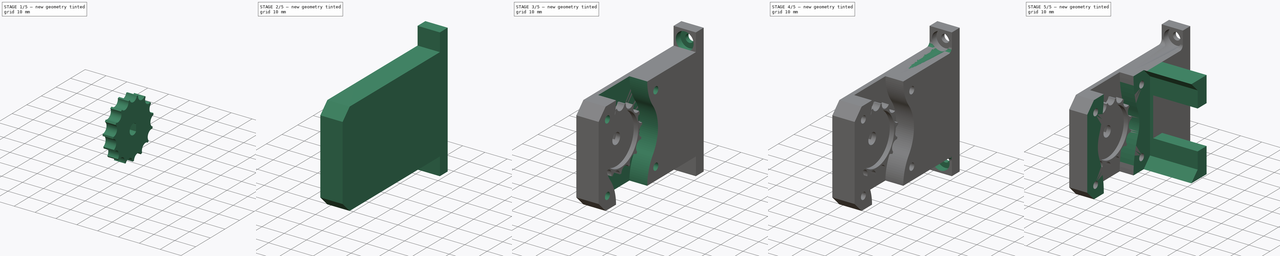
[diagram: build sequence overview — one tinted view per stage of 5, left to right]
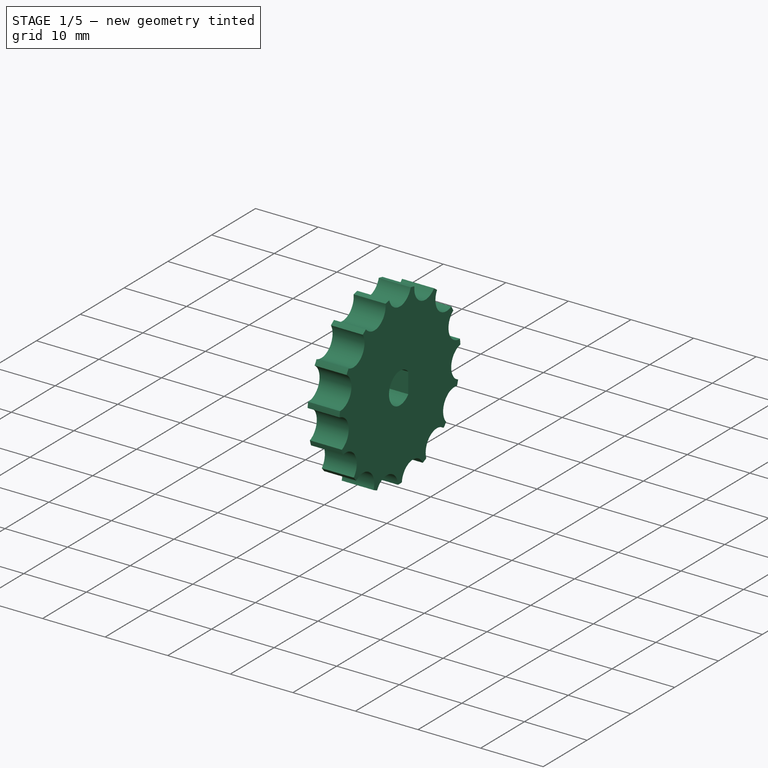
[diagram: stage 1 of 5 — iso view after this stage's code; geometry added in this stage tinted green]
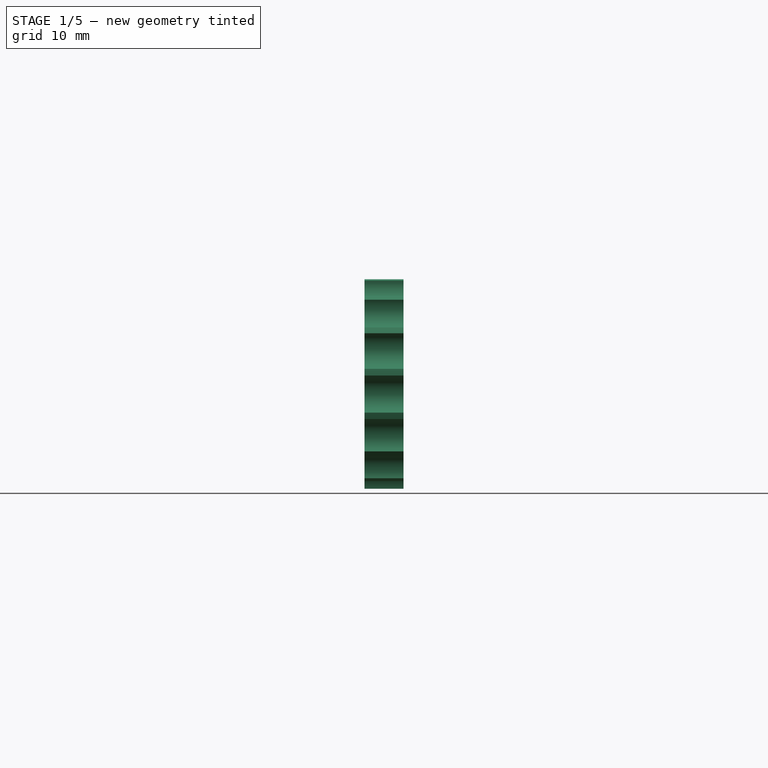
[diagram: stage 1 of 5 — front view after this stage's code; geometry added in this stage tinted green]
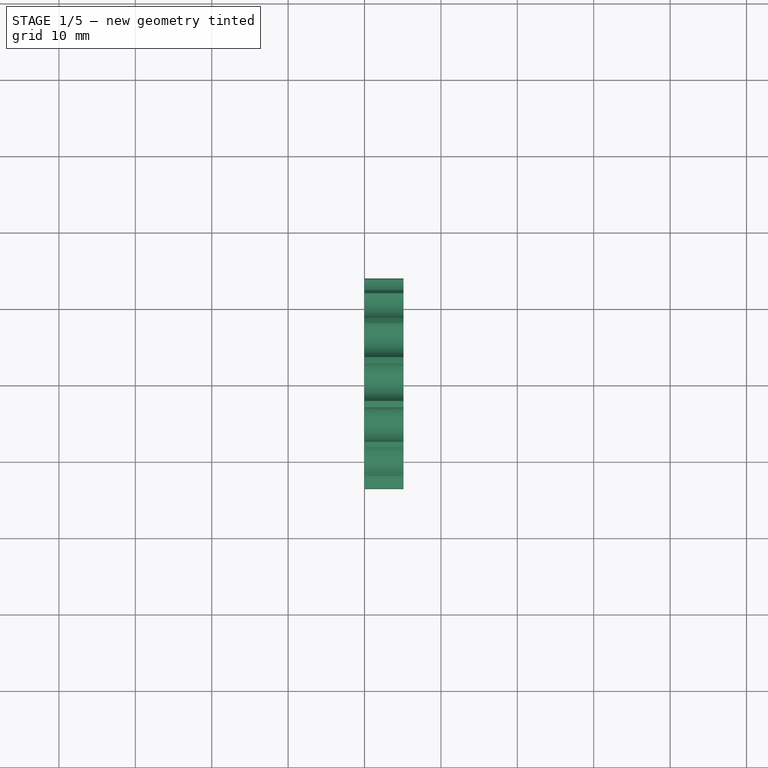
[diagram: stage 1 of 5 — top view after this stage's code; geometry added in this stage tinted green]
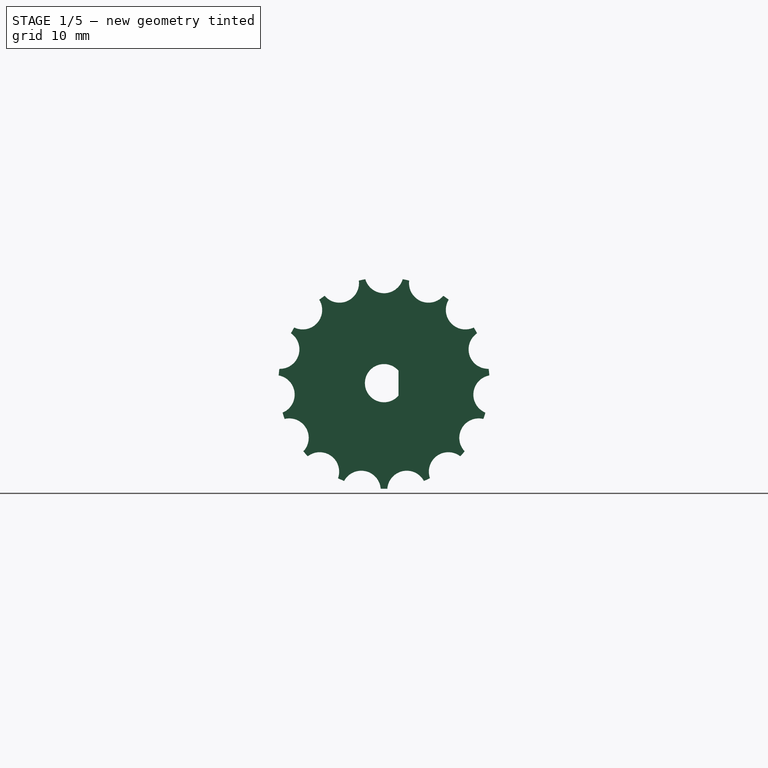
[diagram: stage 1 of 5 — right view after this stage's code; geometry added in this stage tinted green]
FCSTD DOCUMENT  (FreeCAD 0.19R24276 (Git))
Label: motor-stand-alone
License: All rights reserved
LicenseURL: http://en.wikipedia.org/wiki/All_rights_reserved
objects: Part::Feature×16, Sketcher::SketchObject×13, App::Link×11, App::Part×8, PartDesign::Pocket×7, PartDesign::Hole×4, PartDesign::Mirrored×4, PartDesign::Pad×2, PartDesign::Body×2, App::DocumentObjectGroup×2, Spreadsheet::Sheet×1, PartDesign::PolarPattern×1, PartDesign::Chamfer×1, PartDesign::Fillet×1, PartDesign::CoordinateSystem×1
note: 67 computed .brp shape members not serialized (recipe doc carries the construction recipe); baked Part::Feature solids carry a one-line shape summary decoded from their .brp

FEATURE [Spreadsheet::Sheet] Spreadsheet  label="Params"
  cells = A3=Chain Ball Radius; B3(ChainBallRadius)==4.1 / 2; A4=Chain Ball Distance; B4(ChainBallDistance)=6; A5=Chain String Radius; B5(ChainStringRadius)==1 / 2; A8=Shade Clearance; B8(ShadeClearance)=20; A9=Motor Pulley Teeths; B9(MotorPulleyTeeths)==ceil((22 + ChainBallRadius * 2) * pi / ChainBallDistance) + 1
FEATURE [Sketcher::SketchObject] Sketch
  FullyConstrained = true
  MapMode = 5
  Placement = pos=(0,0,0) rot=(0.57735,0.57735,0.57735;2.0944rad)
  Support = -> [YZ_Plane]
  expr: Constraints[13] = <<Params>>.MotorPulleyTeeths * <<Params>>.ChainBallDistance / pi - <<Params>>.ChainStringRadius * 2
  sketch-geometry (6):
    g0: LineSegment StartX=21.15 StartY=-21.15 StartZ=0 EndX=21.15 EndY=21.15 EndZ=0
    g1: LineSegment StartX=21.15 StartY=21.15 StartZ=0 EndX=-21.15 EndY=21.15 EndZ=0
    g2: LineSegment StartX=-21.15 StartY=21.15 StartZ=0 EndX=-21.15 EndY=-21.15 EndZ=0
    g3: LineSegment StartX=-21.15 StartY=-21.15 StartZ=0 EndX=21.15 EndY=-21.15 EndZ=0
    g4: Circle CenterX=0 CenterY=0 CenterZ=0 NormalX=0 NormalY=0 NormalZ=1 AngleXU=0 Radius=29.9106
    g5: Circle CenterX=0 CenterY=0 CenterZ=0 NormalX=0 NormalY=0 NormalZ=1 AngleXU=0 Radius=13.8239
  constraints (16):
    c: Coincident(g0,g1)
    c: Coincident(g1,g2)
    c: Coincident(g2,g3)
    c: Coincident(g3,g0)
    c: Equal(g0,g1)
    c: Equal(g0,g2)
    c: Equal(g0,g3)
    c: PointOnObject(g0,g4)
    c: PointOnObject(g1,g4)
    c: PointOnObject(g2,g4)
    c: PointOnObject(g3,g4)
    c: Angle(g3) = 0
    c: Distance(g0) = 42.3
    c: Diameter(g5) = 27.6479
    c: Coincident(g5,g-1)
    c: Coincident(g4,g5)
FEATURE [PartDesign::Pad] Pad
  Direction = (1,1,1)
  Length = 5.1
  Length2 = 100
  Placement = pos=(0,0,0) rot=(0.57735,0.57735,0.57735;2.0944rad)
  Profile = -> Sketch
  Type = 0
  expr: Length = <<Params>>.ChainBallRadius * 2 + 1
FEATURE [Sketcher::SketchObject] Sketch001
  FullyConstrained = true
  MapMode = 5
  Placement = pos=(5.1,-2.3e-15,1.1e-15) rot=(0.57735,0.57735,0.57735;2.0944rad)
  Support = -> [Pad]
  expr: Constraints[1] = <<Params>>.ChainBallRadius * 2 + 1
  expr: Constraints[2] = <<Params>>.MotorPulleyTeeths * <<Params>>.ChainBallDistance / pi / 2
  sketch-geometry (1):
    g0: Circle CenterX=0 CenterY=14.3239 CenterZ=0 NormalX=0 NormalY=0 NormalZ=1 AngleXU=0 Radius=2.55
  constraints (3):
    c: PointOnObject(g0,g-2)
    c: Diameter(g0) = 5.1
    c: Distance(g-1,g0) = 14.3239
FEATURE [PartDesign::Pocket] Pocket
  BaseFeature = -> Pad
  Length = 5
  Length2 = 100
  Placement = pos=(0,0,0) rot=(0.57735,0.57735,0.57735;2.0944rad)
  Profile = -> Sketch001
  Type = 1
FEATURE [PartDesign::PolarPattern] PolarPattern
  Angle = 360
  Axis = -> Sketch001 [N_Axis]
  BaseFeature = -> Pocket
  Occurrences = 15
  Originals = -> [Pocket]
  Placement = pos=(0,0,0) rot=(0.57735,0.57735,0.57735;2.0944rad)
  expr: Occurrences = <<Params>>.MotorPulleyTeeths
FEATURE [PartDesign::Pocket] Pocket001
  BaseFeature = -> PolarPattern
  Length = 5
  Length2 = 100
  Placement = pos=(0,0,0) rot=(0.57735,0.57735,0.57735;2.0944rad)
  Profile = -> Sketch002
  Type = 1
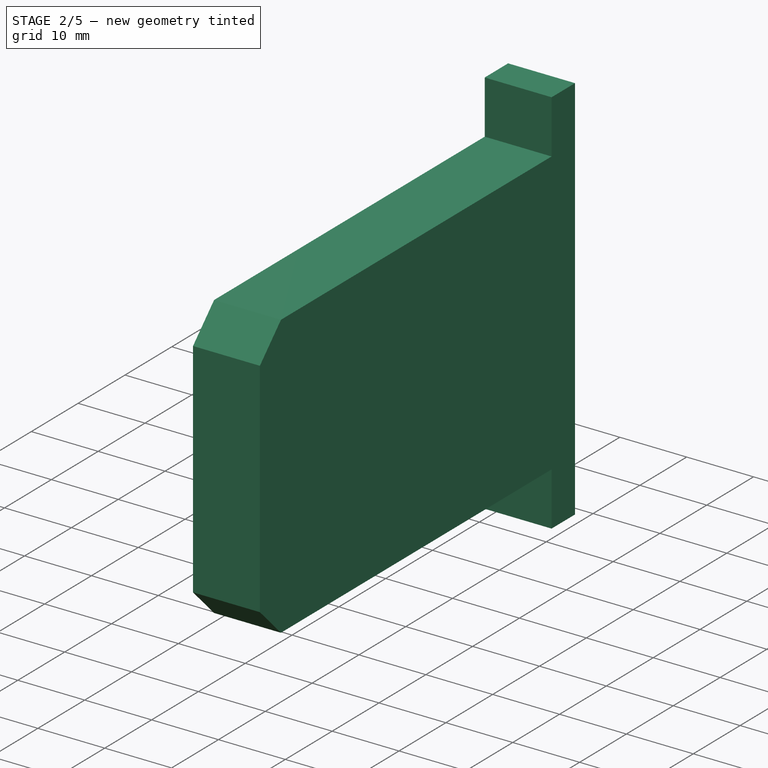
[diagram: stage 2 of 5 — iso view after this stage's code; geometry added in this stage tinted green]
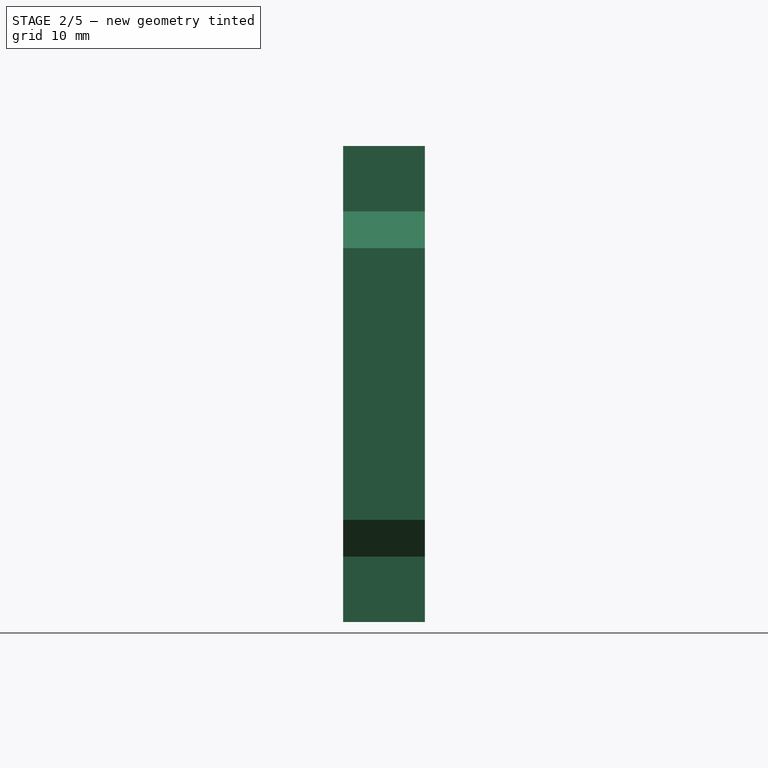
[diagram: stage 2 of 5 — front view after this stage's code; geometry added in this stage tinted green]
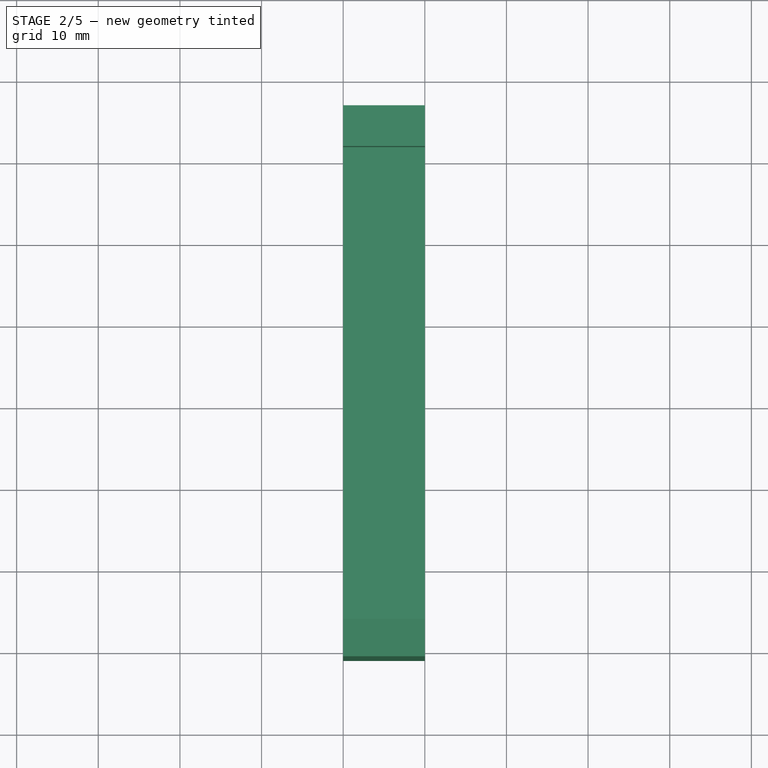
[diagram: stage 2 of 5 — top view after this stage's code; geometry added in this stage tinted green]
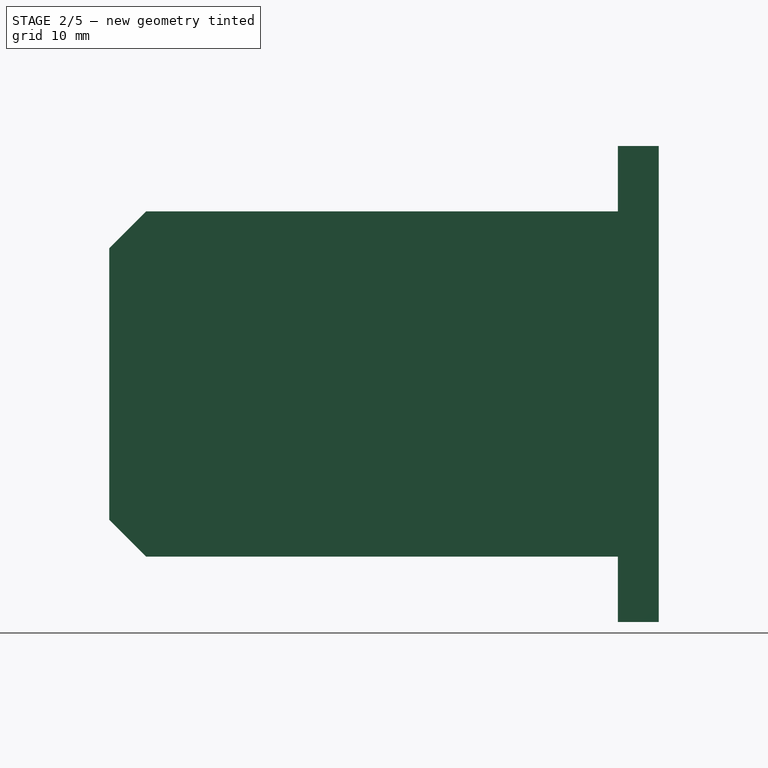
[diagram: stage 2 of 5 — right view after this stage's code; geometry added in this stage tinted green]
FEATURE [Sketcher::SketchObject] Sketch002
  FullyConstrained = true
  MapMode = 5
  Placement = pos=(5.1,-3.4e-15,1.7e-15) rot=(0.57735,0.57735,0.57735;2.0944rad)
  Support = -> [PolarPattern]
  sketch-geometry (3):
    g0: ArcOfCircle CenterX=0 CenterY=0 CenterZ=0 NormalX=0 NormalY=0 NormalZ=1 AngleXU=0 Radius=2.5 StartAngle=0.707483 EndAngle=5.5757
    g1: LineSegment StartX=1.9 StartY=1.62481 StartZ=0 EndX=1.9 EndY=-1.62481 EndZ=0
    g2: GeomPoint X=-2.5 Y=0 Z=0
  constraints (8):
    c: Coincident(g0,g-1)
    c: Coincident(g1,g0)
    c: Coincident(g1,g0)
    c: PointOnObject(g2,g0)
    c: PointOnObject(g2,g-1)
    c: Vertical(g1)
    c: Diameter(g0) = 5
    c: DistanceX(g2,g0) = 4.4
FEATURE [Sketcher::SketchObject] Sketch003
  FullyConstrained = true
  MapMode = 5
  Placement = pos=(0,0,0) rot=(0.57735,0.57735,0.57735;2.0944rad)
  Support = -> [YZ_Plane001]
  expr: Constraints[29] = <<Params>>.ShadeClearance
  sketch-geometry (12):
    g0: LineSegment StartX=21.15 StartY=-21.15 StartZ=0 EndX=21.15 EndY=21.15 EndZ=0
    g1: LineSegment StartX=21.15 StartY=21.15 StartZ=0 EndX=-21.15 EndY=21.15 EndZ=0
    g2: LineSegment StartX=-21.15 StartY=21.15 StartZ=0 EndX=-21.15 EndY=-21.15 EndZ=0
    g3: LineSegment StartX=-21.15 StartY=-21.15 StartZ=0 EndX=21.15 EndY=-21.15 EndZ=0
    g4: Circle CenterX=0 CenterY=0 CenterZ=0 NormalX=0 NormalY=0 NormalZ=1 AngleXU=0 Radius=29.9106
    g5: LineSegment StartX=21.15 StartY=21.15 StartZ=0 EndX=41.15 EndY=21.15 EndZ=0
    g6: LineSegment StartX=41.15 StartY=21.15 StartZ=0 EndX=41.15 EndY=29.15 EndZ=0
    g7: LineSegment StartX=41.15 StartY=29.15 StartZ=0 EndX=46.15 EndY=29.15 EndZ=0
    g8: LineSegment StartX=46.15 StartY=29.15 StartZ=0 EndX=46.15 EndY=-29.15 EndZ=0
    g9: LineSegment StartX=46.15 StartY=-29.15 StartZ=0 EndX=41.15 EndY=-29.15 EndZ=0
    g10: LineSegment StartX=21.15 StartY=-21.15 StartZ=0 EndX=41.15 EndY=-21.15 EndZ=0
    g11: LineSegment StartX=41.15 StartY=-21.15 StartZ=0 EndX=41.15 EndY=-29.15 EndZ=0
  constraints (34):
    c: Coincident(g0,g1)
    c: Coincident(g1,g2)
    c: Coincident(g2,g3)
    c: Coincident(g3,g0)
    c: Equal(g0,g1)
    c: Equal(g0,g2)
    c: Equal(g0,g3)
    c: PointOnObject(g0,g4)
    c: PointOnObject(g1,g4)
    c: PointOnObject(g2,g4)
    c: PointOnObject(g3,g4)
    c: Coincident(g4,g-1)
    c: Angle(g3) = 0
    c: Distance(g1) = 42.3
    c: Coincident(g5,g1)
    c: Horizontal(g5)
    c: Coincident(g6,g5)
    c: Vertical(g6)
    c: Coincident(g7,g6)
    c: Horizontal(g7)
    c: Coincident(g8,g7)
    c: Vertical(g8)
    c: Coincident(g9,g8)
    c: Coincident(g10,g3)
    c: Horizontal(g10)
    c: Coincident(g11,g10)
    c: Coincident(g11,g9)
    c: Vertical(g11)
    c: Horizontal(g9)
    c: Distance(g5) = 20
    c: Distance(g7) = 5
    c: Equal(g7,g9)
    c: Equal(g11,g6)
    c: Distance(g6) = 8
FEATURE [PartDesign::Pad] Pad001
  Direction = (1,1,1)
  Length = 10
  Length2 = 100
  Placement = pos=(0,0,0) rot=(0.57735,0.57735,0.57735;2.0944rad)
  Profile = -> Sketch003
  Type = 0
FEATURE [PartDesign::Chamfer] Chamfer
  Angle = 45
  Base = -> Pad001 [Edge5,Edge2]
  BaseFeature = -> Pad001
  ChamferType = 0
  FlipDirection = false
  Placement = pos=(0,0,0) rot=(0.57735,0.57735,0.57735;2.0944rad)
  Size = 4.5
  Size2 = 1
  SupportTransform = false
FEATURE [PartDesign::Body] Body001
  Group = -> [Sketch003,Pad001,Chamfer,Sketch005,Hole,Sketch006,Pocket002,Sketch007,Pocket003,Sketch008,Hole001,Hole002,Mirrored,Fillet,Mirrored001,Sketch009,Pocket004,Mirrored002,Sketch018,Hole003,Mirrored003]
  Origin = -> Origin001
  Tip = -> Mirrored003
FEATURE [Sketcher::SketchObject] Sketch021
  FullyConstrained = true
  MapMode = 5
  Placement = pos=(5.1,-4.5e-15,2.3e-15) rot=(0.57735,0.57735,0.57735;2.0944rad)
  Support = -> [Pocket001]
  sketch-geometry (1):
    g0: Circle CenterX=0 CenterY=0 CenterZ=0 NormalX=0 NormalY=0 NormalZ=1 AngleXU=0 Radius=11.2
  constraints (2):
    c: Coincident(g0,g-1)
    c: Diameter(g0) = 22.4
FEATURE [PartDesign::Pocket] Pocket008
  BaseFeature = -> Pocket001
  Length = 2
  Length2 = 100
  Placement = pos=(0,0,0) rot=(0.57735,0.57735,0.57735;2.0944rad)
  Profile = -> Sketch021
  Type = 0
FEATURE [Sketcher::SketchObject] Sketch022
  ExternalGeometry = -> [Pocket008]
  FullyConstrained = true
  MapMode = 5
  Placement = pos=(3.1,-2.7e-15,1.7e-15) rot=(0.57735,0.57735,0.57735;2.0944rad)
  Support = -> [Pocket008]
  sketch-geometry (1):
    g0: Circle CenterX=0 CenterY=0 CenterZ=0 NormalX=0 NormalY=0 NormalZ=1 AngleXU=0 Radius=2.5
  constraints (2):
    c: Coincident(g0,g-1)
    c: Equal(g0,g-3)
FEATURE [PartDesign::Pocket] Pocket009
  BaseFeature = -> Pocket008
  Length = 2
  Length2 = 100
  Placement = pos=(0,0,0) rot=(0.57735,0.57735,0.57735;2.0944rad)
  Profile = -> Sketch022
  Type = 0
FEATURE [PartDesign::Body] Body  label="Body002"
  Group = -> [Sketch,Pad,Sketch001,Pocket,PolarPattern,Sketch002,Pocket001,Sketch021,Pocket008,Sketch022,Pocket009]
  Origin = -> Origin
  Placement = pos=(2.2,0,0) rot=(0,0,1;0rad)
  Tip = -> Pocket009
FEATURE [Part::Feature] Part__Feature  label="Body"
  Placement = pos=(-4.25,24.1277,-12.5) rot=(0,1,0;1.5708rad)
  shape: bbox 48 x 42 x 62 mm, 423 faces, 20 solids (baked)
FEATURE [App::Part] Part  label="NEMA17"
  Group = -> [Part__Feature]
  Origin = -> Origin015
  Placement = pos=(7.5,0,2e-15) rot=(0.57735,0.57735,-0.57735;4.18879rad)
FEATURE [App::Part] Part001  label="motor-mount"
  Group = -> [Body001]
  Origin = -> Origin028
FEATURE [App::Part] Part002  label="motor-pulley"
  Group = -> [Body]
  Origin = -> Origin029
FEATURE [App::DocumentObjectGroup] Group001  label="3d-prints"
  Group = -> [Part001,Part002]
FEATURE [PartDesign::CoordinateSystem] Local_CS_5eb1
  AttacherType = Attacher::AttachEngine3D
FEATURE [Part::Feature] Pcb_5eb1
  Placement = pos=(-60.825,52.325,0) rot=(0,0,1;0rad)
  shape: bbox 50.1 x 49.8 x 1.6 mm, 96 faces (baked)
FEATURE [Sketcher::SketchObject] PCB_Sketch_5eb1
  FullyConstrained = false
  sketch-geometry (10):
    g0: LineSegment StartX=26 StartY=-22.9 StartZ=0 EndX=26 EndY=-16.9 EndZ=0
    g1: LineSegment StartX=-24.1 StartY=-15.6 StartZ=0 EndX=-16.8 EndY=-22.9 EndZ=0
    g2: LineSegment StartX=-16.8 StartY=-22.9 StartZ=0 EndX=26 EndY=-22.9 EndZ=0
    g3: LineSegment StartX=-24.1 StartY=26.9 StartZ=0 EndX=-24.1 EndY=-15.6 EndZ=0
    g4: LineSegment StartX=23.7 StartY=26.9 StartZ=0 EndX=-24.1 EndY=26.9 EndZ=0
    g5: LineSegment StartX=26 StartY=-16.9 StartZ=0 EndX=23.7 EndY=26.9 EndZ=0
    g6: Circle CenterX=15.5 CenterY=-15.5 CenterZ=0 NormalX=0 NormalY=0 NormalZ=1 AngleXU=0 Radius=1.6
    g7: Circle CenterX=15.5 CenterY=15.5 CenterZ=0 NormalX=0 NormalY=0 NormalZ=1 AngleXU=0 Radius=1.6
    g8: Circle CenterX=-15.5 CenterY=15.5 CenterZ=0 NormalX=0 NormalY=0 NormalZ=1 AngleXU=0 Radius=1.6
    g9: Circle CenterX=-15.5 CenterY=-15.5 CenterZ=0 NormalX=0 NormalY=0 NormalZ=1 AngleXU=0 Radius=1.6
  constraints (6):
    c: Coincident(g1,g3)
    c: Coincident(g3,g4)
    c: Coincident(g1,g2)
    c: Coincident(g4,g5)
    c: Coincident(g0,g2)
    c: Coincident(g0,g5)
FEATURE [Part::Feature] Shape  label="U3_PinSocket_2x10_P254mm_Vertical_6088BD27"
  Placement = pos=(-11.4,6.7,0) rot=(0,0,1;1.5708rad)
  shape: bbox 25.4 x 5.08 x 10.1 mm, 630 faces (baked)
FEATURE [App::Link] U3_PinSocket_2x10_P254mm_Vertical_6088BD27_ln_  label="U3_PinSocket_2x10_P254mm_Vertical_6088BD27[2]"
  LinkPlacement = pos=(-11.4,-18.76,0) rot=(0,0,1;1.5708rad)
  LinkedObject = -> Shape
  Placement = pos=(-11.4,-18.76,0) rot=(0,0,1;1.5708rad)
FEATURE [Part::Feature] Shape001  label="U3_PinHeader_2x10_P254mm_Vertical_6088BD27[3]"
  Placement = pos=(-11.4,6.7,9.6) rot=(0.707107,-0.707107,0;3.14159rad)
  shape: bbox 25.4 x 5.08 x 11.54 mm, 424 faces (baked)
FEATURE [App::Link] U3_PinHeader_2x10_P254mm_Vertical_6088BD27_3__ln_  label="U3_PinHeader_2x10_P254mm_Vertical_6088BD27[4]"
  LinkPlacement = pos=(-11.4,-18.8,9.6) rot=(-0.707107,0.707107,0;3.14159rad)
  LinkedObject = -> Shape001
  Placement = pos=(-11.4,-18.8,9.6) rot=(-0.707107,0.707107,0;3.14159rad)
FEATURE [Part::Feature] Shape002  label="U1_PinSocket_2x02_P254mm_Vertical_608AC9E9"
  Placement = pos=(-19.75,13.29,0) rot=(0,0,1;0rad)
  shape: bbox 5.08 x 5.08 x 10.1 mm, 134 faces (baked)
FEATURE [App::Link] U1_PinSocket_2x02_P254mm_Vertical_608AC9E9_ln_  label="U1_PinSocket_2x02_P254mm_Vertical_608AC9E9[2]"
  LinkPlacement = pos=(-19.75,21.71,0) rot=(0,0,-1;1.5708rad)
  LinkedObject = -> Shape002
  Placement = pos=(-19.75,21.71,0) rot=(0,0,-1;1.5708rad)
FEATURE [App::Link] U1_PinSocket_2x02_P254mm_Vertical_608AC9E9_ln_001  label="U1_PinSocket_2x02_P254mm_Vertical_608AC9E9[3]"
  LinkPlacement = pos=(-2.25,13.29,0) rot=(0,0,1;1.5708rad)
  LinkedObject = -> Shape002
  Placement = pos=(-2.25,13.29,0) rot=(0,0,1;1.5708rad)
FEATURE [App::Link] U1_PinSocket_2x02_P254mm_Vertical_608AC9E9_ln_002  label="U1_PinSocket_2x02_P254mm_Vertical_608AC9E9[4]"
  LinkPlacement = pos=(-2.5,21.71,0) rot=(0,0,1;3.14159rad)
  LinkedObject = -> Shape002
  Placement = pos=(-2.5,21.71,0) rot=(0,0,1;3.14159rad)
FEATURE [Part::Feature] Shape003  label="U1_PinHeader_2x02_P254mm_Vertical_608AC9E9[5]"
  Placement = pos=(-19.75,13.29,9.6) rot=(0,1,0;3.14159rad)
  shape: bbox 5.08 x 5.08 x 11.54 mm, 88 faces (baked)
FEATURE [App::Link] U1_PinHeader_2x02_P254mm_Vertical_608AC9E9_5__ln_  label="U1_PinHeader_2x02_P254mm_Vertical_608AC9E9[6]"
  LinkPlacement = pos=(-2.25,13.29,9.6) rot=(-0.707107,0.707107,0;3.14159rad)
  LinkedObject = -> Shape003
  Placement = pos=(-2.25,13.29,9.6) rot=(-0.707107,0.707107,0;3.14159rad)
FEATURE [App::Link] U1_PinHeader_2x02_P254mm_Vertical_608AC9E9_5__ln_001  label="U1_PinHeader_2x02_P254mm_Vertical_608AC9E9[7]"
  LinkPlacement = pos=(-2.25,21.71,9.6) rot=(1,0,0;3.14159rad)
  LinkedObject = -> Shape003
  Placement = pos=(-2.25,21.71,9.6) rot=(1,0,0;3.14159rad)
FEATURE [App::Link] U1_PinHeader_2x02_P254mm_Vertical_608AC9E9_5__ln_002  label="U1_PinHeader_2x02_P254mm_Vertical_608AC9E9[8]"
  LinkPlacement = pos=(-19.5,21.71,9.6) rot=(0.707107,0.707107,0;3.14159rad)
  LinkedObject = -> Shape003
  Placement = pos=(-19.5,21.71,9.6) rot=(0.707107,0.707107,0;3.14159rad)
FEATURE [Part::Feature] Shape004  label="A1_stepstick002_608A0AAC"
  Placement = pos=(73.4,75.1,9.3) rot=(0,0,1;3.14159rad)
  shape: bbox 20.32 x 15.24 x 16.04 mm, 1272 faces, 94 solids (baked)
FEATURE [Part::Feature] Shape005  label="A1_PinSocket_1x08_P254mm_Vertical_608A0AAC[2]"
  Placement = pos=(21.4,23.1,0) rot=(0,0,-1;1.5708rad)
  shape: bbox 20.32 x 2.54 x 10.1 mm, 258 faces (baked)
FEATURE [App::Link] A1_PinSocket_1x08_P254mm_Vertical_608A0AAC_2__ln_  label="A1_PinSocket_1x08_P254mm_Vertical_608A0AAC[3]"
  LinkPlacement = pos=(21.4,10.4,0) rot=(0,0,-1;1.5708rad)
  LinkedObject = -> Shape005
  Placement = pos=(21.4,10.4,0) rot=(0,0,-1;1.5708rad)
FEATURE [Part::Feature] Shape006  label="A1_PinSocket_1x02_P254mm_Vertical_608A0AAC[4]"
  Placement = pos=(3.62,12.9,0) rot=(0,0,1;3.14159rad)
  shape: bbox 2.54 x 5.08 x 10.1 mm, 72 faces (baked)
FEATURE [Part::Feature] Shape007  label="J2_PinHeader_1x03_P254mm_Vertical_60893AEE"
  Placement = pos=(-21.75,-8.38,0) rot=(0,0,1;3.14159rad)
  shape: bbox 2.54 x 7.62 x 11.54 mm, 76 faces (baked)
FEATURE [Part::Feature] Shape008  label="C8_CP_Radial_D50mm_P250mm_60821875"
  Placement = pos=(6.9,18.2,0) rot=(0,0,1;0rad)
  shape: bbox 6.128 x 6.515 x 7 mm, 49 faces (baked)
FEATURE [Part::Feature] Shape009  label="R3_R_0805_2012Metric_6088BC68"
  Placement = pos=(0.1,1.2,0) rot=(0,0,1;3.14159rad)
  shape: bbox 2 x 1.2 x 0.45 mm, 26 faces (baked)
FEATURE [App::Link] R3_R_0805_2012Metric_6088BC68_ln_  label="R2_R_0805_2012Metric_6088BC51"
  LinkPlacement = pos=(-6.3,-2.3,0) rot=(0,0,1;1.5708rad)
  LinkedObject = -> Shape009
  Placement = pos=(-6.3,-2.3,0) rot=(0,0,1;1.5708rad)
FEATURE [App::Link] R3_R_0805_2012Metric_6088BC68_ln_001  label="R1_R_0805_2012Metric_6088FFA8"
  LinkPlacement = pos=(-3.7,-2.3,0) rot=(0,0,1;1.5708rad)
  LinkedObject = -> Shape009
  Placement = pos=(-3.7,-2.3,0) rot=(0,0,1;1.5708rad)
FEATURE [Part::Feature] Shape010  label="U4_TO-92_Inline_Narrow_6088BD39"
  Placement = pos=(23.7,-21.1,0) rot=(0,0,1;1.5708rad)
  shape: bbox 3.745 x 4.83 x 9.8 mm, 19 faces (baked)
FEATURE [App::Part] Top_5eb1
  Group = -> [Shape,U3_PinSocket_2x10_P254mm_Vertical_6088BD27_ln_,Shape001,U3_PinHeader_2x10_P254mm_Vertical_6088BD27_3__ln_,Shape002,U1_PinSocket_2x02_P254mm_Vertical_608AC9E9_ln_,U1_PinSocket_2x02_P254mm_Vertical_608AC9E9_ln_001,U1_PinSocket_2x02_P254mm_Vertical_608AC9E9_ln_002,Shape003,U1_PinHeader_2x02_P254mm_Vertical_608AC9E9_5__ln_,U1_PinHeader_2x02_P254mm_Vertical_608AC9E9_5__ln_001,+11 more]
  Origin = -> Origin003
FEATURE [Part::Feature] Shape011  label="C2_C_0805_2012Metric_60597E53"
  Placement = pos=(5.2,-0.4,-1.6) rot=(0.707107,-0.707107,0;3.14159rad)
  shape: bbox 1.25 x 2 x 1.25 mm, 28 faces (baked)
FEATURE [App::Part] Bot_5eb1
  Group = -> [Shape011]
  Origin = -> Origin004
FEATURE [App::Part] Step_Models_5eb1
  Group = -> [Top_5eb1,Bot_5eb1]
  Origin = -> Origin002
FEATURE [Part::Feature] topTracks_5eb1
  Placement = pos=(-60.825,52.325,0.01) rot=(0,0,1;0rad)
  shape: bbox 47.74 x 47.3 x 0.04 mm, 107 faces, 0 solids (baked)
FEATURE [Part::Feature] botTracks_5eb1
  Placement = pos=(-60.825,52.325,-1.61) rot=(0,0,1;0rad)
  shape: bbox 47.74 x 47.22 x 0.04 mm, 109 faces, 0 solids (baked)
FEATURE [App::Part] Board_Geoms_5eb1
  Group = -> [Local_CS_5eb1,Pcb_5eb1,PCB_Sketch_5eb1,topTracks_5eb1,botTracks_5eb1]
  Origin = -> Origin033
FEATURE [App::Part] Board_5eb1  label="driver-board"
  Group = -> [Board_Geoms_5eb1,Step_Models_5eb1]
  Origin = -> Origin032
  Placement = pos=(50,0,1.11e-14) rot=(0,1,0;1.5708rad)
FEATURE [App::DocumentObjectGroup] Group  label="pcbs"
  Group = -> [Board_5eb1]
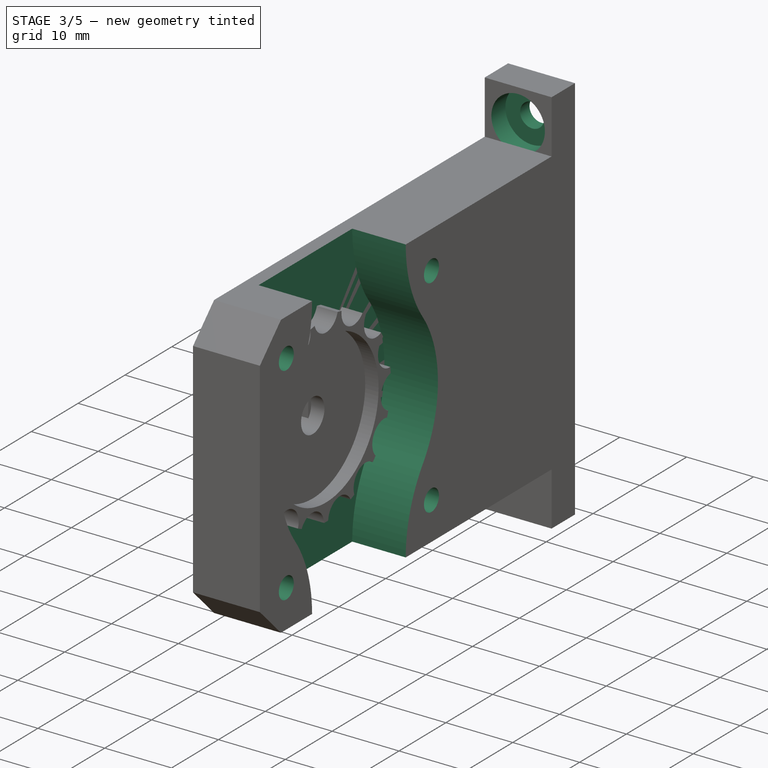
[diagram: stage 3 of 5 — iso view after this stage's code; geometry added in this stage tinted green]
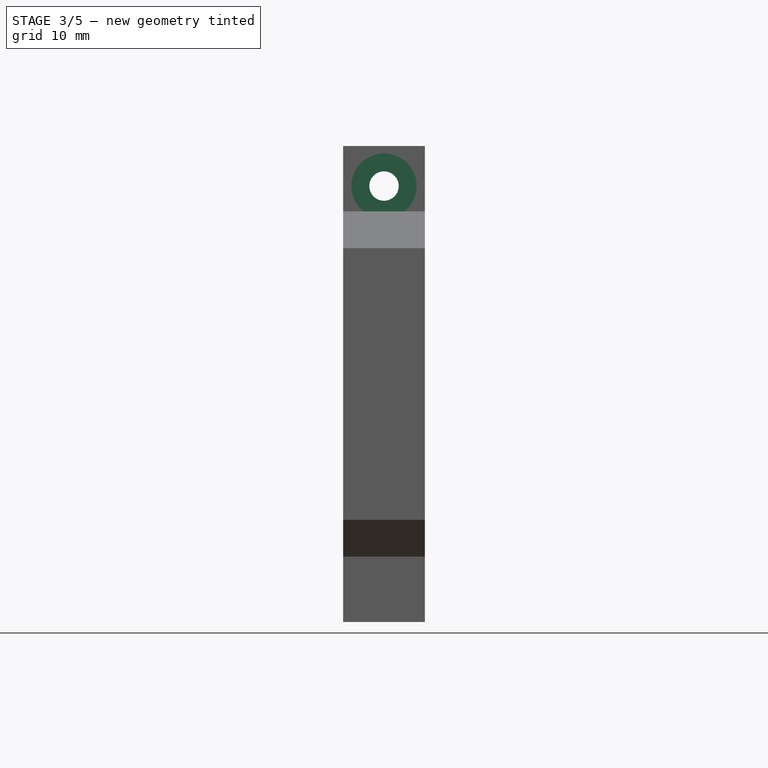
[diagram: stage 3 of 5 — front view after this stage's code; geometry added in this stage tinted green]
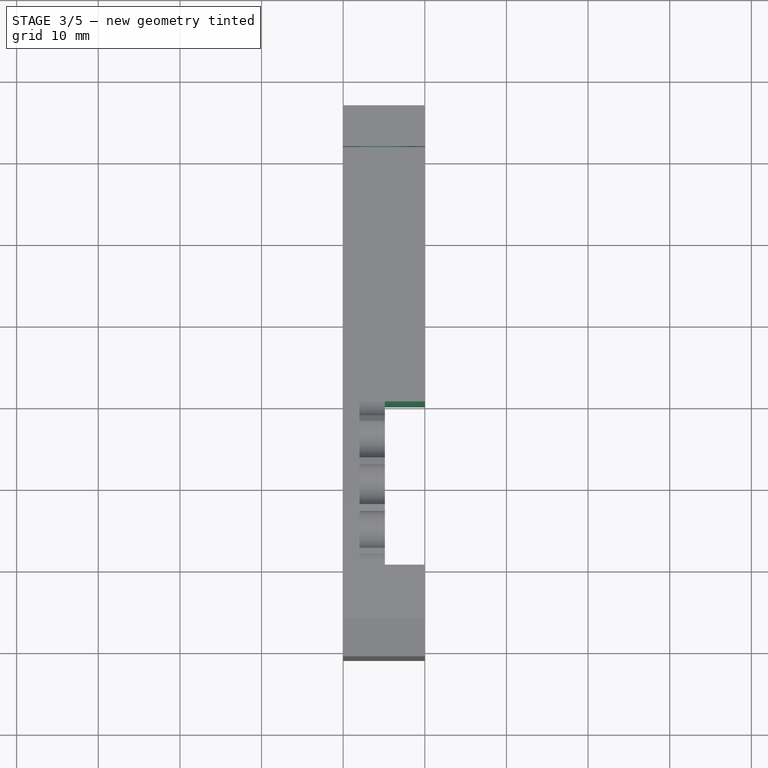
[diagram: stage 3 of 5 — top view after this stage's code; geometry added in this stage tinted green]
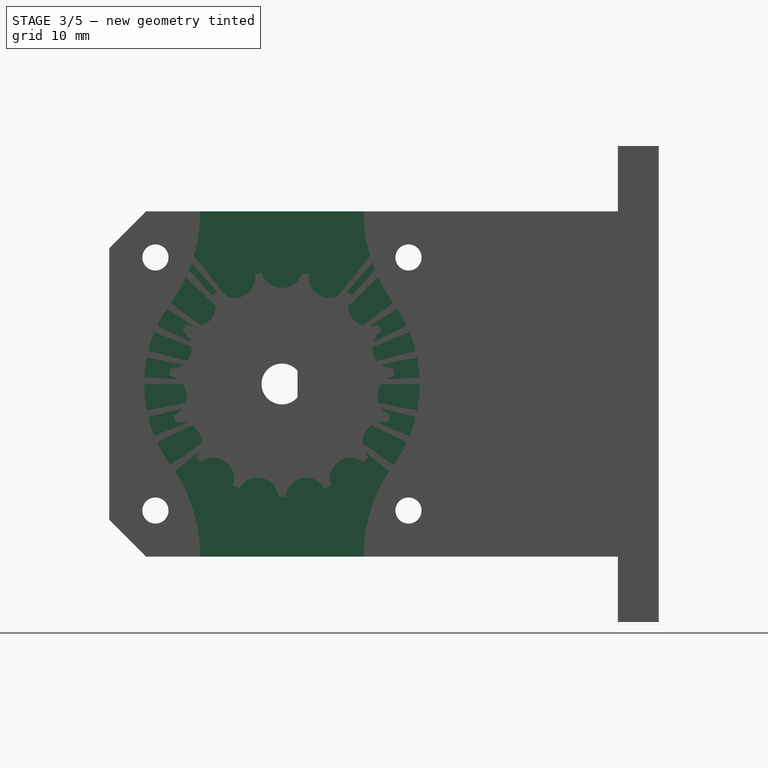
[diagram: stage 3 of 5 — right view after this stage's code; geometry added in this stage tinted green]
FEATURE [Sketcher::SketchObject] Sketch005
  ExternalGeometry = -> [Chamfer]
  FullyConstrained = true
  MapMode = 5
  Placement = pos=(0,0,0) rot=(0.57735,0.57735,-0.57735;4.18879rad)
  Support = -> [Chamfer]
  sketch-geometry (9):
    g0: LineSegment StartX=-15.5 StartY=15.5 StartZ=0 EndX=-15.5 EndY=-15.5 EndZ=0
    g1: LineSegment StartX=-15.5 StartY=-15.5 StartZ=0 EndX=15.5 EndY=-15.5 EndZ=0
    g2: LineSegment StartX=15.5 StartY=-15.5 StartZ=0 EndX=15.5 EndY=15.5 EndZ=0
    g3: LineSegment StartX=15.5 StartY=15.5 StartZ=0 EndX=-15.5 EndY=15.5 EndZ=0
    g4: Circle CenterX=0 CenterY=0 CenterZ=0 NormalX=0 NormalY=0 NormalZ=1 AngleXU=0 Radius=21.9203
    g5: Circle CenterX=-15.5 CenterY=-15.5 CenterZ=0 NormalX=0 NormalY=0 NormalZ=1 AngleXU=0 Radius=3.5
    g6: Circle CenterX=15.5 CenterY=-15.5 CenterZ=0 NormalX=0 NormalY=0 NormalZ=1 AngleXU=0 Radius=3.5
    g7: Circle CenterX=15.5 CenterY=15.5 CenterZ=0 NormalX=0 NormalY=0 NormalZ=1 AngleXU=0 Radius=3.5
    g8: Circle CenterX=-15.5 CenterY=15.5 CenterZ=0 NormalX=0 NormalY=0 NormalZ=1 AngleXU=0 Radius=3.5
  constraints (22):
    c: Coincident(g0,g1)
    c: Coincident(g1,g2)
    c: Coincident(g2,g3)
    c: Coincident(g3,g0)
    c: Equal(g0,g1)
    c: Equal(g0,g2)
    c: Equal(g0,g3)
    c: PointOnObject(g0,g4)
    c: PointOnObject(g1,g4)
    c: PointOnObject(g2,g4)
    c: PointOnObject(g3,g4)
    c: Coincident(g4,g-1)
    c: Angle(g-3,g0) = 0
    c: Distance(g0) = 31
    c: Coincident(g5,g0)
    c: Coincident(g6,g1)
    c: Coincident(g7,g2)
    c: Coincident(g8,g0)
    c: Equal(g8,g7)
    c: Equal(g7,g6)
    c: Equal(g6,g5)
    c: Diameter(g5) = 7
FEATURE [PartDesign::Hole] Hole
  BaseFeature = -> Chamfer
  Depth = 24
  DepthType = 1
  Diameter = 3.2
  DrillForDepth = false
  DrillPoint = 1
  DrillPointAngle = 118
  HoleCutCountersinkAngle = 90
  HoleCutCustomValues = false
  HoleCutDepth = 0
  HoleCutDiameter = 7
  HoleCutType = 2
  ModelActualThread = false
  Placement = pos=(0,0,0) rot=(0.57735,0.57735,0.57735;2.0944rad)
  Profile = -> Sketch005
  Tapered = false
  TaperedAngle = 90
  ThreadAngle = 0
  ThreadClass = 0
  ThreadCutOffInner = 0
  ThreadCutOffOuter = 0
  ThreadDirection = 0
  ThreadFit = 0
  ThreadPitch = 0
  ThreadSize = 0
  ThreadType = 0
  Threaded = false
FEATURE [Sketcher::SketchObject] Sketch006
  ExternalGeometry = -> [Hole]
  FullyConstrained = true
  MapMode = 5
  Placement = pos=(10,-2.2e-15,2.2e-15) rot=(0.57735,0.57735,0.57735;2.0944rad)
  Support = -> [Hole]
  expr: Constraints[24] = <<Params>>.MotorPulleyTeeths * <<Params>>.ChainBallDistance / pi / 2 + <<Params>>.ChainBallRadius + 0.5
  sketch-geometry (9):
    g0: GeomPoint X=16.8739 Y=0 Z=0
    g1: ArcOfCircle CenterX=29.1006 CenterY=21.15 CenterZ=0 NormalX=0 NormalY=0 NormalZ=1 AngleXU=0 Radius=19.1006 StartAngle=3.14159 EndAngle=3.77007
    g2: ArcOfCircle CenterX=29.1006 CenterY=-21.15 CenterZ=0 NormalX=0 NormalY=0 NormalZ=1 AngleXU=0 Radius=19.1006 StartAngle=2.51311 EndAngle=3.14159
    g3: ArcOfCircle CenterX=-29.1006 CenterY=-21.15 CenterZ=0 NormalX=0 NormalY=0 NormalZ=1 AngleXU=0 Radius=19.1006 StartAngle=-9e-16 EndAngle=0.62848
    g4: ArcOfCircle CenterX=-29.1006 CenterY=21.15 CenterZ=0 NormalX=0 NormalY=0 NormalZ=1 AngleXU=0 Radius=19.1006 StartAngle=5.6547 EndAngle=6.28319
    g5: ArcOfCircle CenterX=0 CenterY=0 CenterZ=0 NormalX=0 NormalY=0 NormalZ=1 AngleXU=0 Radius=16.8739 StartAngle=2.51311 EndAngle=3.77007
    g6: ArcOfCircle CenterX=0 CenterY=0 CenterZ=0 NormalX=0 NormalY=0 NormalZ=1 AngleXU=0 Radius=16.8739 StartAngle=5.6547 EndAngle=6.91167
    g7: LineSegment StartX=-10 StartY=21.15 StartZ=0 EndX=10 EndY=21.15 EndZ=0
    g8: LineSegment StartX=-10 StartY=-21.15 StartZ=0 EndX=10 EndY=-21.15 EndZ=0
  constraints (26):
    c: PointOnObject(g0,g-1)
    c: PointOnObject(g1,g-7)
    c: PointOnObject(g2,g-9)
    c: PointOnObject(g3,g-9)
    c: PointOnObject(g4,g-7)
    c: Coincident(g5,g-1)
    c: Coincident(g6,g5)
    c: PointOnObject(g0,g6)
    c: Equal(g6,g5)
    c: Tangent(g1,g6) = 1.5708
    c: Tangent(g5,g4) = 1.5708
    c: Tangent(g5,g3) = 1.5708
    c: Tangent(g2,g6) = 1.5708
    c: Perpendicular(g4,g-7)
    c: Perpendicular(g1,g-7)
    c: Perpendicular(g2,g-9)
    c: Perpendicular(g3,g-9)
    c: Equal(g3,g4)
    c: Equal(g4,g1)
    c: Equal(g1,g2)
    c: Coincident(g7,g4)
    c: Coincident(g7,g1)
    c: Coincident(g8,g3)
    c: Coincident(g8,g2)
    c: Distance(g5,g0) = 16.8739
    c: Distance(g8) = 20
FEATURE [PartDesign::Pocket] Pocket002
  BaseFeature = -> Hole
  Length = 0
  Length2 = 100
  Offset = -2
  Placement = pos=(0,0,0) rot=(0.57735,0.57735,0.57735;2.0944rad)
  Profile = -> Sketch006
  Type = 3
  UpToFace = -> Hole [Face2]
FEATURE [Sketcher::SketchObject] Sketch007
  FullyConstrained = true
  MapMode = 5
  Placement = pos=(2,-4e-16,4e-16) rot=(0.57735,0.57735,0.57735;2.0944rad)
  Support = -> [Pocket002]
  sketch-geometry (1):
    g0: Circle CenterX=0 CenterY=0 CenterZ=0 NormalX=0 NormalY=0 NormalZ=1 AngleXU=0 Radius=3
  constraints (2):
    c: Coincident(g0,g-1)
    c: Radius(g0) = 3
FEATURE [PartDesign::Pocket] Pocket003
  BaseFeature = -> Pocket002
  Length = 5
  Length2 = 100
  Placement = pos=(0,0,0) rot=(0.57735,0.57735,0.57735;2.0944rad)
  Profile = -> Sketch007
  Type = 1
FEATURE [Sketcher::SketchObject] Sketch008
  ExternalGeometry = -> [Pocket003]
  FullyConstrained = true
  MapMode = 5
  Placement = pos=(1.81e-14,41.15,-9.1e-15) rot=(-0.57735,-0.57735,0.57735;4.18879rad)
  Support = -> [Pocket003]
  sketch-geometry (5):
    g0: Circle CenterX=-24.25 CenterY=5 CenterZ=0 NormalX=0 NormalY=0 NormalZ=1 AngleXU=0 Radius=4.1
    g1: LineSegment StartX=-29.15 StartY=-5.12e-14 StartZ=0 EndX=-24.25 EndY=5 EndZ=0
    g2: LineSegment StartX=-24.25 StartY=5 StartZ=0 EndX=-29.15 EndY=10 EndZ=0
    g3: GeomPoint X=-28.35 Y=5 Z=0
    g4: LineSegment StartX=-29.15 StartY=5 StartZ=0 EndX=-28.35 EndY=5 EndZ=0
  constraints (12):
    c: Coincident(g1,g-3)
    c: Coincident(g1,g0)
    c: Coincident(g2,g0)
    c: Coincident(g2,g-3)
    c: Equal(g2,g1)
    c: Diameter(g0) = 8.2
    c: PointOnObject(g3,g0)
    c: Horizontal(g3,g0)
    c: PointOnObject(g4,g-3)
    c: Coincident(g4,g3)
    c: Perpendicular(g-3,g4)
    c: Distance(g4) = 0.8
FEATURE [PartDesign::Hole] Hole001
  BaseFeature = -> Pocket003
  Depth = 25
  DepthType = 1
  Diameter = 3.6
  DrillForDepth = false
  DrillPoint = 1
  DrillPointAngle = 118
  HoleCutCountersinkAngle = 90
  HoleCutCustomValues = false
  HoleCutDepth = 3
  HoleCutDiameter = 8
  HoleCutType = 1
  ModelActualThread = false
  Placement = pos=(0,0,0) rot=(0.57735,0.57735,0.57735;2.0944rad)
  Profile = -> Sketch008
  Tapered = false
  TaperedAngle = 90
  ThreadAngle = 0
  ThreadClass = 0
  ThreadCutOffInner = 0
  ThreadCutOffOuter = 0
  ThreadDirection = 0
  ThreadFit = 0
  ThreadPitch = 0
  ThreadSize = 0
  ThreadType = 0
  Threaded = false
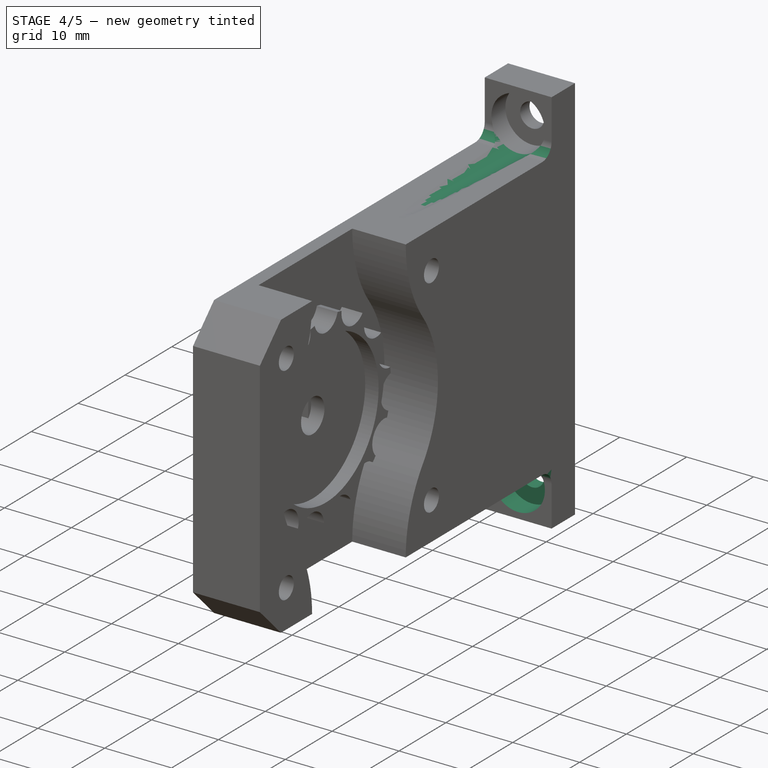
[diagram: stage 4 of 5 — iso view after this stage's code; geometry added in this stage tinted green]
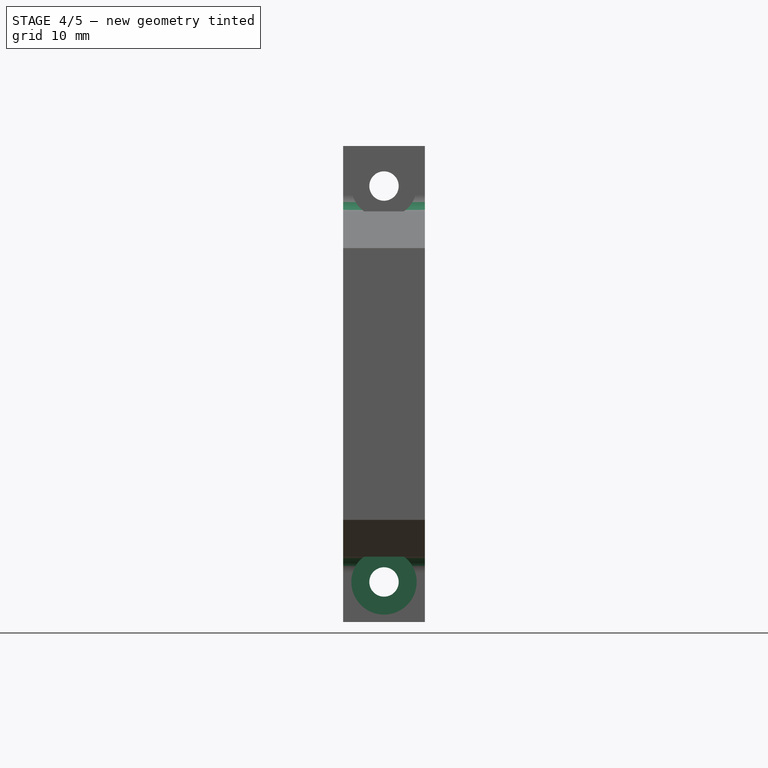
[diagram: stage 4 of 5 — front view after this stage's code; geometry added in this stage tinted green]
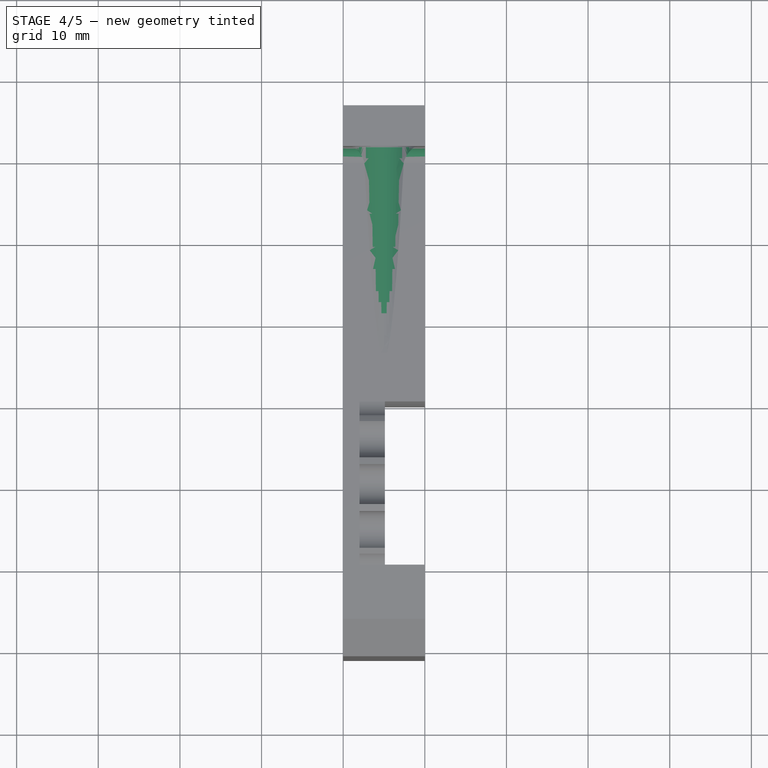
[diagram: stage 4 of 5 — top view after this stage's code; geometry added in this stage tinted green]
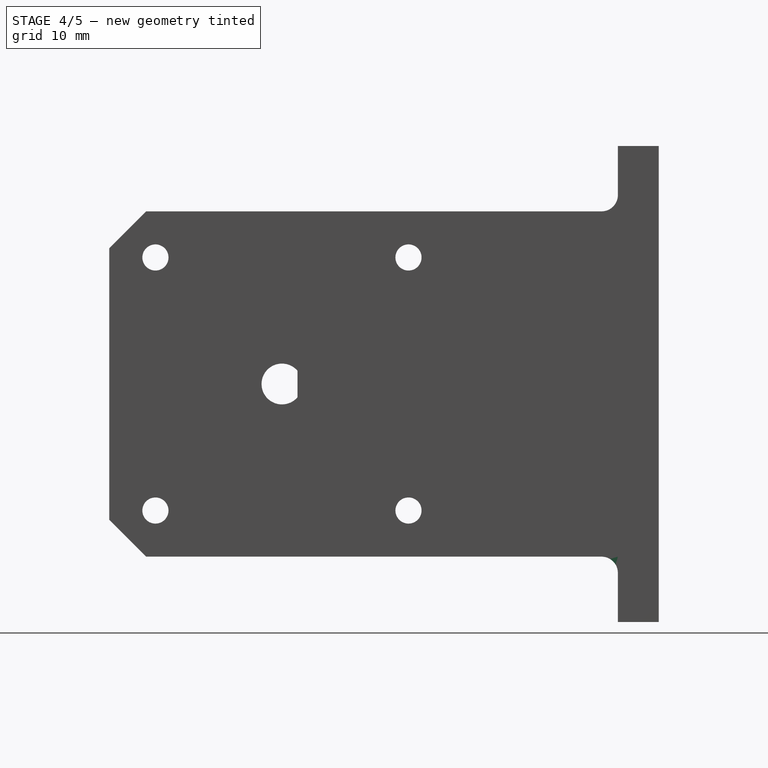
[diagram: stage 4 of 5 — right view after this stage's code; geometry added in this stage tinted green]
FEATURE [PartDesign::Hole] Hole002
  BaseFeature = -> Hole001
  Depth = 100
  DepthType = 0
  Diameter = 8
  DrillForDepth = false
  DrillPoint = 1
  DrillPointAngle = 118
  HoleCutCountersinkAngle = 90
  HoleCutCustomValues = false
  HoleCutDepth = 0
  HoleCutDiameter = 0
  HoleCutType = 0
  ModelActualThread = false
  Placement = pos=(0,0,0) rot=(0.57735,0.57735,0.57735;2.0944rad)
  Profile = -> Sketch008
  Reversed = true
  Tapered = true
  TaperedAngle = 88
  ThreadAngle = 0
  ThreadClass = 0
  ThreadCutOffInner = 0
  ThreadCutOffOuter = 0
  ThreadDirection = 0
  ThreadFit = 0
  ThreadPitch = 0
  ThreadSize = 0
  ThreadType = 0
  Threaded = false
FEATURE [PartDesign::Mirrored] Mirrored
  BaseFeature = -> Hole002
  MirrorPlane = -> Sketch008 [V_Axis]
  Originals = -> [Hole001,Hole002]
  Placement = pos=(0,0,0) rot=(0.57735,0.57735,0.57735;2.0944rad)
FEATURE [PartDesign::Fillet] Fillet
  Base = -> Mirrored [Edge46,Edge50]
  BaseFeature = -> Mirrored
  Placement = pos=(0,0,0) rot=(0.57735,0.57735,0.57735;2.0944rad)
  Radius = 2
  SupportTransform = false
FEATURE [PartDesign::Mirrored] Mirrored001
  BaseFeature = -> Fillet
  MirrorPlane = -> XY_Plane001
  Originals = -> [Fillet]
  Placement = pos=(0,0,0) rot=(0.57735,0.57735,0.57735;2.0944rad)
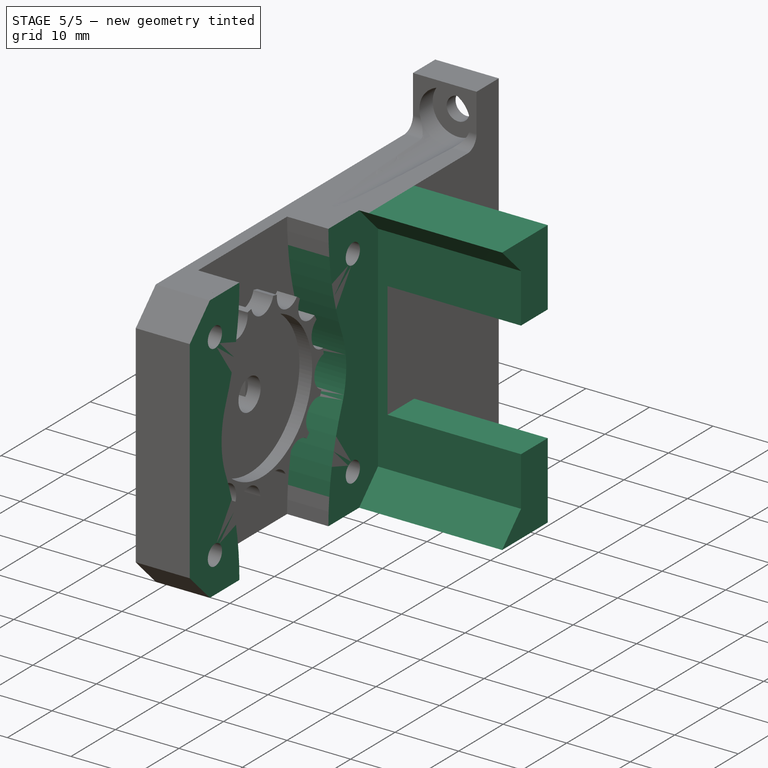
[diagram: stage 5 of 5 — iso view after this stage's code; geometry added in this stage tinted green]
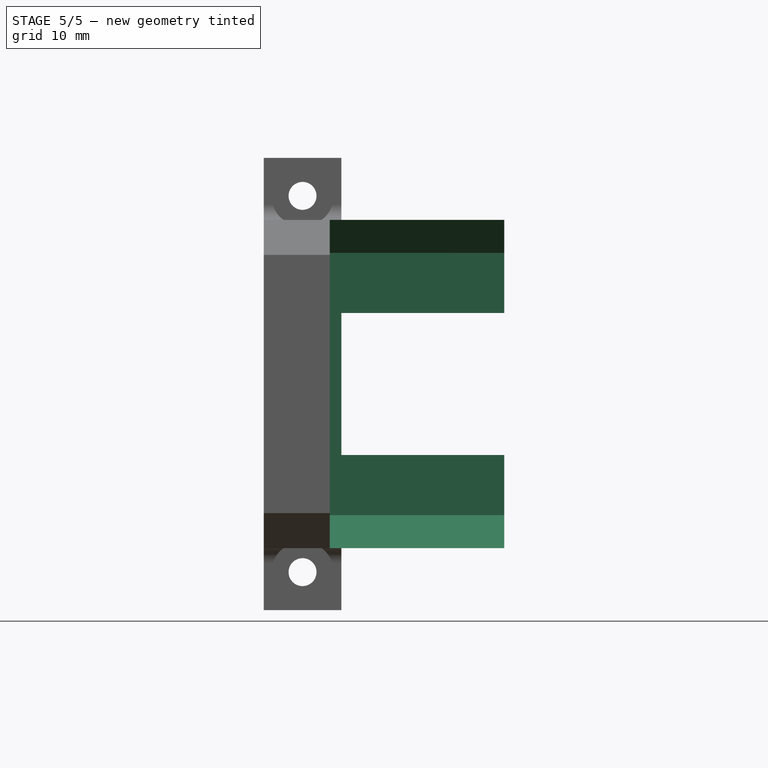
[diagram: stage 5 of 5 — front view after this stage's code; geometry added in this stage tinted green]
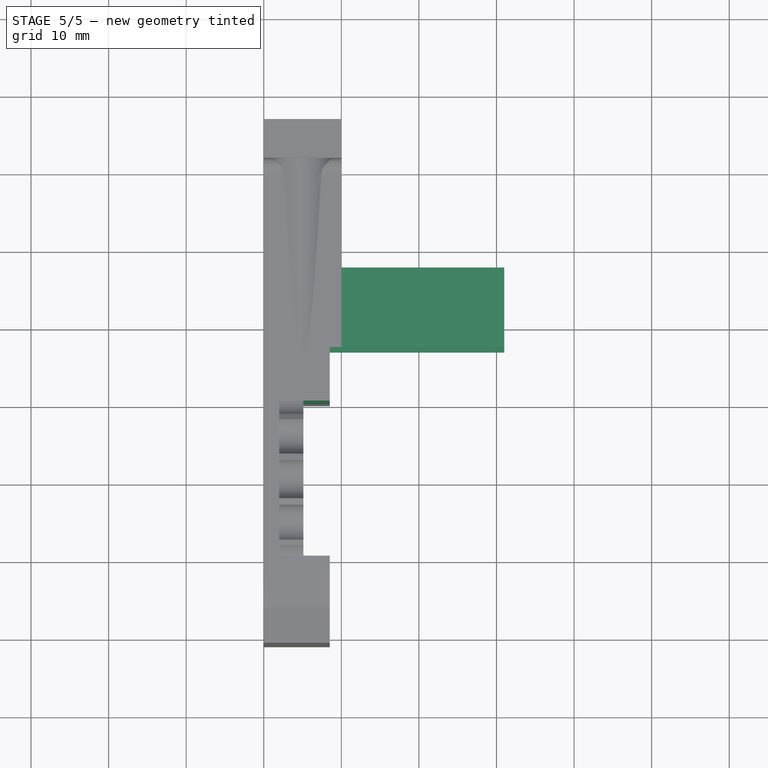
[diagram: stage 5 of 5 — top view after this stage's code; geometry added in this stage tinted green]
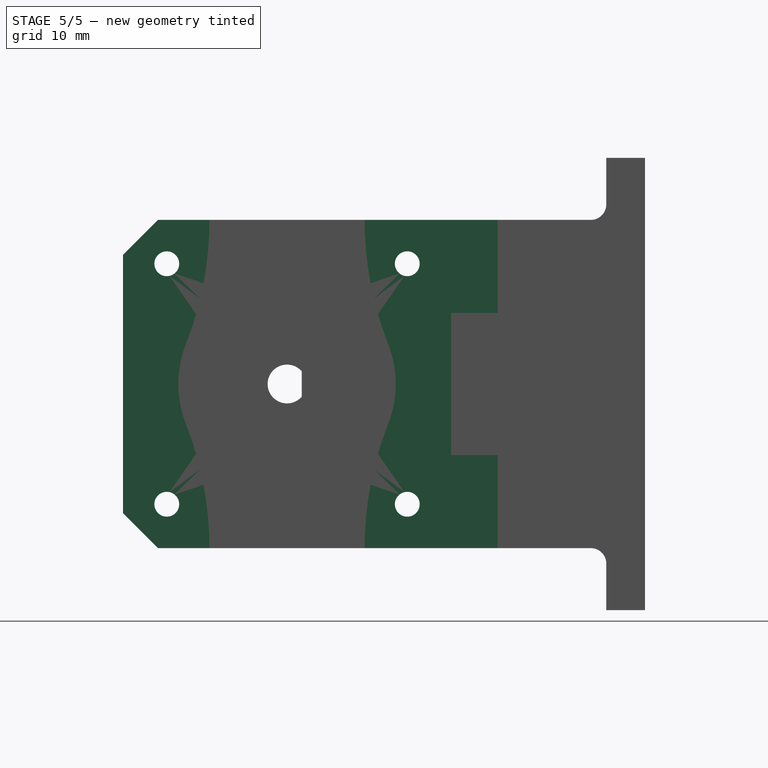
[diagram: stage 5 of 5 — right view after this stage's code; geometry added in this stage tinted green]
FEATURE [Sketcher::SketchObject] Sketch009
  ExternalGeometry = -> [Mirrored001]
  FullyConstrained = true
  MapMode = 5
  Placement = pos=(10,-2.2e-15,2.2e-15) rot=(0.57735,0.57735,0.57735;2.0944rad)
  Support = -> [Mirrored001]
  sketch-geometry (8):
    g0: LineSegment StartX=-16.65 StartY=-21.15 StartZ=0 EndX=-21.15 EndY=-16.65 EndZ=0
    g1: LineSegment StartX=-21.15 StartY=-16.65 StartZ=0 EndX=-21.15 EndY=16.65 EndZ=0
    g2: LineSegment StartX=-21.15 StartY=16.65 StartZ=0 EndX=-16.65 EndY=21.15 EndZ=0
    g3: LineSegment StartX=21.15 StartY=16.9074 StartZ=0 EndX=21.15 EndY=-16.9074 EndZ=0
    g4: LineSegment StartX=21.15 StartY=-16.9074 StartZ=0 EndX=16.9074 EndY=-21.15 EndZ=0
    g5: LineSegment StartX=16.9074 StartY=-21.15 StartZ=0 EndX=-16.65 EndY=-21.15 EndZ=0
    g6: LineSegment StartX=16.9074 StartY=21.15 StartZ=0 EndX=21.15 EndY=16.9074 EndZ=0
    g7: LineSegment StartX=-16.65 StartY=21.15 StartZ=0 EndX=16.9074 EndY=21.15 EndZ=0
  constraints (20):
    c: Coincident(g0,g-5)
    c: Coincident(g0,g-5)
    c: Coincident(g1,g0)
    c: Coincident(g1,g-6)
    c: Coincident(g2,g1)
    c: Coincident(g2,g-6)
    c: Vertical(g3)
    c: Coincident(g4,g3)
    c: PointOnObject(g4,g-4)
    c: Coincident(g5,g4)
    c: Coincident(g5,g0)
    c: PointOnObject(g6,g-3)
    c: Coincident(g6,g3)
    c: Coincident(g7,g2)
    c: Coincident(g7,g6)
    c: Equal(g6,g4)
    c: Distance(g6) = 6
    c: Angle(g-3,g6) = 2.35619
    c: Angle(g4,g-4) = 2.35619
    c: Vertical(g3,g-4)
FEATURE [PartDesign::Pocket] Pocket004
  BaseFeature = -> Mirrored001
  Length = 0
  Length2 = 100
  Offset = -5.5
  Placement = pos=(0,0,0) rot=(0.57735,0.57735,0.57735;2.0944rad)
  Profile = -> Sketch009
  Type = 3
  UpToFace = -> Mirrored001 [Face22]
  expr: Offset = -<<Params>>.ChainBallRadius * 2 - 0.4 - 1
FEATURE [PartDesign::Mirrored] Mirrored002
  BaseFeature = -> Pocket004
  MirrorPlane = -> XY_Plane001
  Placement = pos=(0,0,0) rot=(0.57735,0.57735,0.57735;2.0944rad)
FEATURE [Sketcher::SketchObject] Sketch018
  ExternalGeometry = -> [Pocket004]
  FullyConstrained = true
  MapMode = 5
  Placement = pos=(0,0,0) rot=(0.57735,0.57735,-0.57735;4.18879rad)
  Support = -> [Pocket004]
  sketch-geometry (1):
    g0: Circle CenterX=24.15 CenterY=16.9074 CenterZ=0 NormalX=0 NormalY=0 NormalZ=1 AngleXU=0 Radius=3.5
  constraints (3):
    c: Diameter(g0) = 7
    c: Horizontal(g-3,g0)
    c: Distance(g0,g-3) = 3
FEATURE [PartDesign::Hole] Hole003
  BaseFeature = -> Pocket004
  Depth = 25
  DepthType = 0
  Diameter = 3.2
  DrillForDepth = false
  DrillPoint = 1
  DrillPointAngle = 118
  HoleCutCountersinkAngle = 90
  HoleCutCustomValues = false
  HoleCutDepth = 0
  HoleCutDiameter = 7
  HoleCutType = 2
  ModelActualThread = false
  Placement = pos=(0,0,0) rot=(0.57735,0.57735,0.57735;2.0944rad)
  Profile = -> Sketch018
  Tapered = false
  TaperedAngle = 90
  ThreadAngle = 0
  ThreadClass = 0
  ThreadCutOffInner = 0
  ThreadCutOffOuter = 0
  ThreadDirection = 0
  ThreadFit = 0
  ThreadPitch = 0
  ThreadSize = 0
  ThreadType = 0
  Threaded = false
FEATURE [PartDesign::Mirrored] Mirrored003
  BaseFeature = -> Hole003
  MirrorPlane = -> XY_Plane001
  Originals = -> [Hole003]
  Placement = pos=(0,0,0) rot=(0.57735,0.57735,0.57735;2.0944rad)
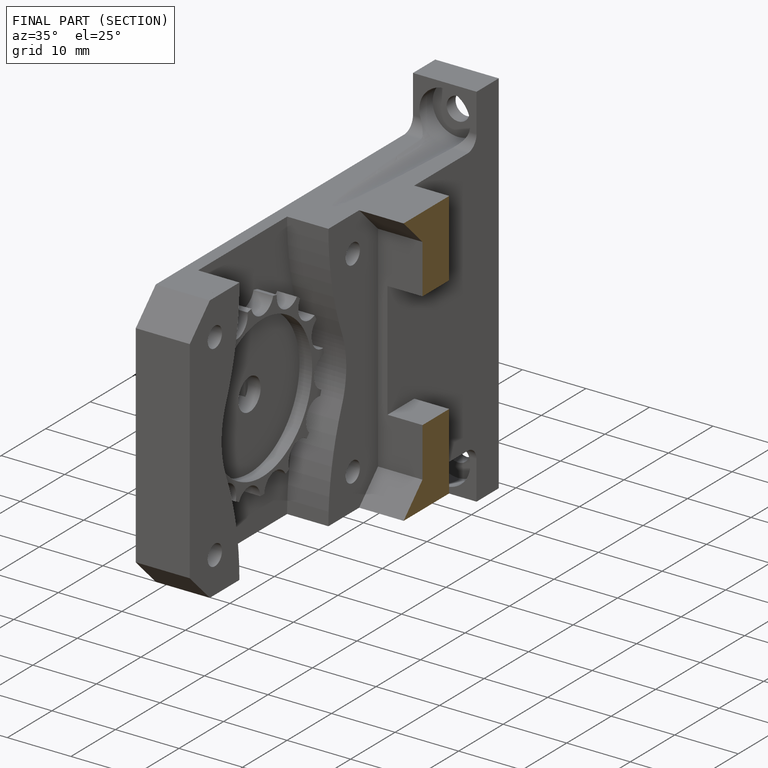
[diagram: finished part — half-section view (interior)]
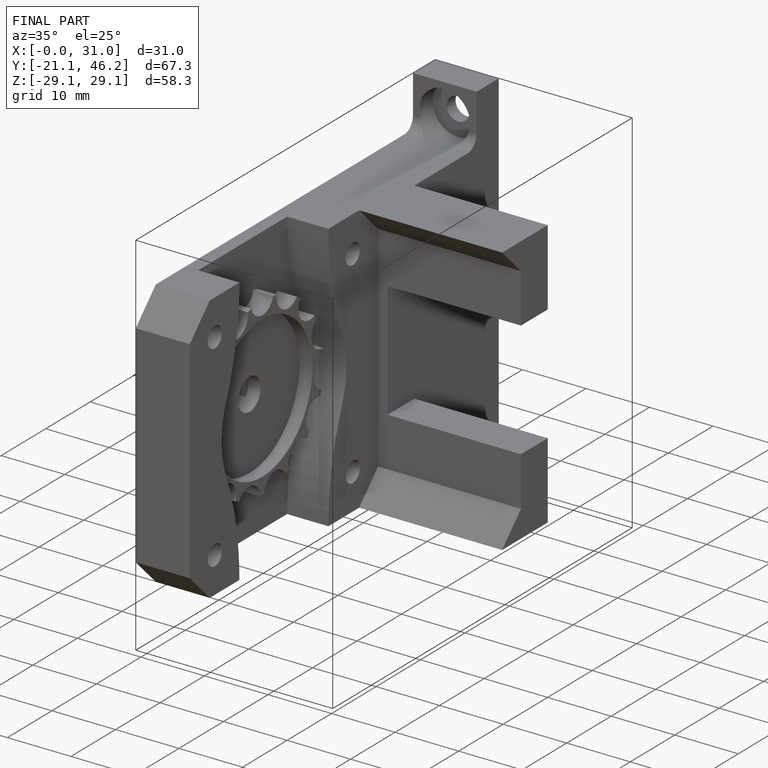
[diagram: finished part — iso view with bounding-box wireframe]
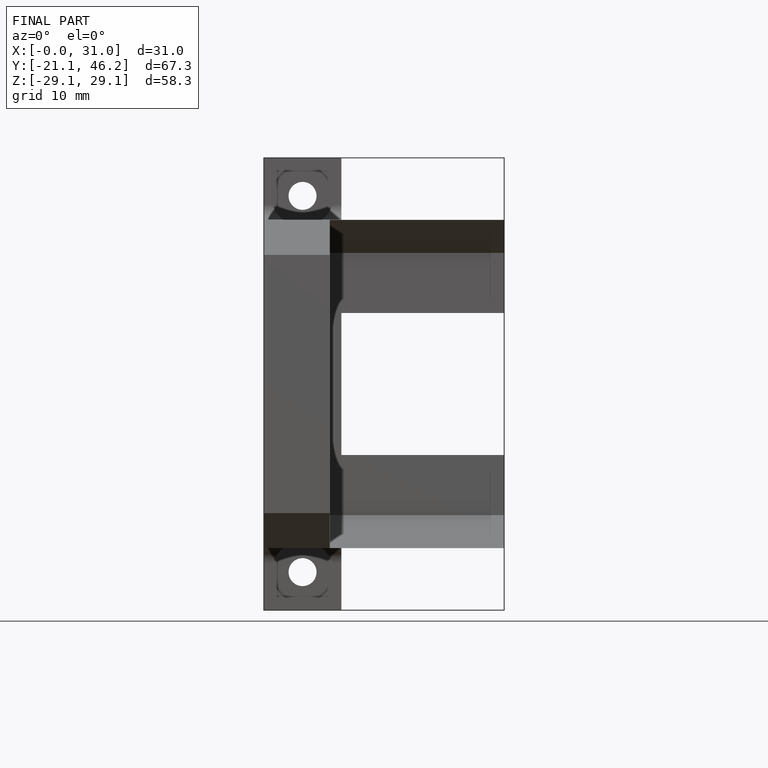
[diagram: finished part — front view with bounding-box wireframe]
